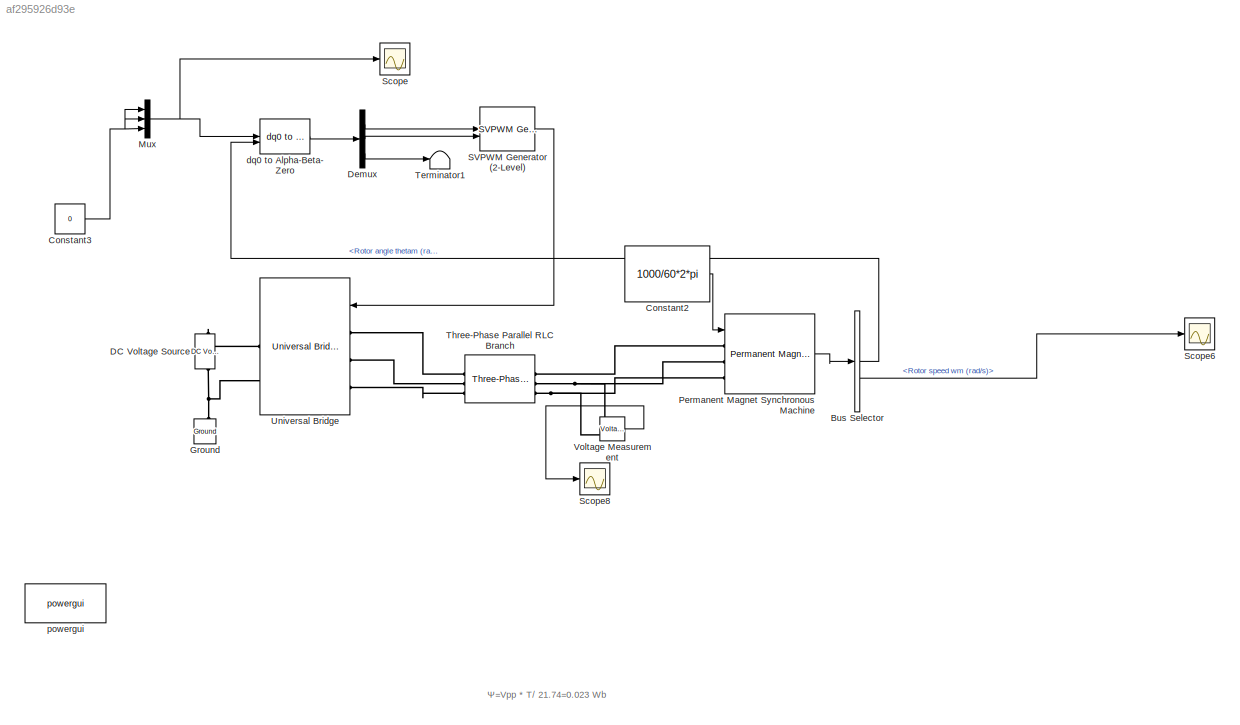
MODEL slx_af295926d93e
KIND model
CONFIG AbsTol = auto
CONFIG EnableMultiTasking = off
CONFIG FixedStep = 0.0000001
CONFIG MaxStep = auto
CONFIG MinStep = auto
CONFIG RelTol = 1e-3
CONFIG SampleTimeConstraint = Unconstrained
CONFIG SolverName = VariableStepAuto
CONFIG StartTime = 0.0
CONFIG StopTime = 0.05
BLOCK [BusSelector] Bus Selector
  OutputSignals = Rotor angle thetam (rad),Rotor speed wm (rad/s),Stator current is_a (A),Stator current is_b (A),Stator current is_c (A),Electromagnetic torque Te (N*m)
BLOCK [Constant] Constant2
  Value = 1000/60*2*pi
BLOCK [Constant] Constant3
  Value = 0
BLOCK [Reference] DC Voltage Source  REF=spsDCVoltageSourceLib/DC Voltage Source
  LibrarySourceBlock = sps_lib/Sources/DC Voltage Source
  SourceBlock = spsDCVoltageSourceLib/DC Voltage Source
  SourceType = DC Voltage Source
BLOCK [Demux] Demux
  Outputs = 3
BLOCK [Reference] Ground  REF=spsGroundLib/Ground
  LibrarySourceBlock = sps_lib/Utilities/Ground
  NameLocation = right
  SourceBlock = spsGroundLib/Ground
  SourceType = Ground
BLOCK [Mux] Mux
  DisplayOption = bar
  Inputs = 3
BLOCK [Reference] Permanent Magnet Synchronous Machine  REF=spsPermanentMagnetSynchronousMachineLib/Permanent Magnet
Synchronous Machine
  LibrarySourceBlock = sps_lib/Electrical Machines/Permanent Magnet\nSynchronous Machine
  SourceBlock = spsPermanentMagnetSynchronousMachineLib/Permanent Magnet\nSynchronous Machine
  SourceType = Permanent Magnet Synchronous Machine
BLOCK [Reference] SVPWM Generator (2-Level)  REF=spsSVPWMGenerator2LevelLib/SVPWM Generator
(2-Level)
  LibrarySourceBlock = sps_lib/Power Electronics/Power Electronics Control/SVPWM Generator\n(2-Level)
  SourceBlock = spsSVPWMGenerator2LevelLib/SVPWM Generator\n(2-Level)
  SourceType = SVPWM Generator (2-Level)
BLOCK [Scope] Scope
  Floating = off
  NumInputPorts = 1
  ScopeSpecificationString = Simulink.scopes.TimeScopeBlockCfg('CurrentConfiguration', extmgr.ConfigurationSet(extmgr.Configuration('Core','General UI',true),extmgr.Configuration('Core','Source UI',true),extmgr.Configuration('Sources','WiredSimulink',true),extmgr.Configuration('Visuals','Time Domain',true,'SerializedDisplays',{struct('MinYLimReal','-0.0625','MaxYLimReal','0.5625','YLabelReal','','MinYLimMag','0.00000','MaxYLi...<+1580ch>
BLOCK [Scope] Scope6
  Floating = off
  NumInputPorts = 1
  ScopeSpecificationString = Simulink.scopes.TimeScopeBlockCfg('CurrentConfiguration', extmgr.ConfigurationSet(extmgr.Configuration('Core','General UI',true),extmgr.Configuration('Core','Source UI',true),extmgr.Configuration('Sources','WiredSimulink',true,'DataLoggingVariableName','ScopeData7'),extmgr.Configuration('Visuals','Time Domain',true,'SerializedDisplays',{struct('MinYLimReal','4.71976','MaxYLimReal','204.71976','YLa...<+1508ch>
BLOCK [Scope] Scope8
  Floating = off
  NumInputPorts = 1
  ScopeSpecificationString = Simulink.scopes.TimeScopeBlockCfg('CurrentConfiguration', extmgr.ConfigurationSet(extmgr.Configuration('Core','General UI',true),extmgr.Configuration('Core','Source UI',true),extmgr.Configuration('Sources','WiredSimulink',true,'DataLoggingVariableName','ScopeData2'),extmgr.Configuration('Visuals','Time Domain',true,'SerializedDisplays',{struct('MinYLimReal','-15.11504','MaxYLimReal','15.11554','YL...<+1518ch>
BLOCK [Terminator] Terminator1
BLOCK [Reference] Three-Phase Parallel RLC Branch  REF=spsThreePhaseParallelRLCBranchLib/Three-Phase
Parallel RLC Branch
  AttributesFormatString = \n
  LibrarySourceBlock = sps_lib/Passives/Three-Phase\nParallel RLC Branch
  SourceBlock = spsThreePhaseParallelRLCBranchLib/Three-Phase\nParallel RLC Branch
  SourceType = Three-Phase Parallel RLC Branch
BLOCK [Reference] Universal Bridge  REF=spsUniversalBridgeLib/Universal Bridge
  LibrarySourceBlock = sps_lib/Power Electronics/Universal Bridge
  NameLocation = top
  SourceBlock = spsUniversalBridgeLib/Universal Bridge
  SourceType = Universal Bridge
BLOCK [Reference] Voltage Measurement  REF=spsVoltageMeasurementLib/Voltage Measurement
  LibrarySourceBlock = sps_lib/Sensors and Measurements/Voltage Measurement
  SourceBlock = spsVoltageMeasurementLib/Voltage Measurement
  SourceType = Voltage Measurement
  UserDataPersistent = on
BLOCK [Reference] dq0 to Alpha-Beta-Zero  REF=spsdq0toAlphaBetaZeroLib/dq0 to
Alpha-Beta-Zero
  LibrarySourceBlock = sps_lib/Control/dq0 to\nAlpha-Beta-Zero
  SourceBlock = spsdq0toAlphaBetaZeroLib/dq0 to\nAlpha-Beta-Zero
  SourceType = dq0 to Alpha-Beta-Zero Transformation
BLOCK [Reference] powergui  REF=spspowerguiLib/powergui
  Priority = 1
  SourceBlock = spspowerguiLib/powergui
  SourceType = PSB option menu block
ANNOTATION (root): Ψ=Vpp * T/ 21.74=0.023 Wb
LINE Bus Selector:1 -> dq0 to Alpha-Beta-Zero:2
LINE Bus Selector:2 -> Scope6:1
LINE Constant2:1 -> Permanent Magnet Synchronous Machine:1
NET Constant3:1 -> Mux:1, Mux:2, Mux:3
LINE Demux:1 -> SVPWM Generator (2-Level):1
LINE Demux:2 -> SVPWM Generator (2-Level):2
LINE Demux:3 -> Terminator1:1
NET Mux:1 -> Scope:1, dq0 to Alpha-Beta-Zero:1
LINE Permanent Magnet Synchronous Machine:1 -> Bus Selector:1
LINE SVPWM Generator (2-Level):1 -> Universal Bridge:1
LINE Voltage Measurement:1 -> Scope8:1
LINE dq0 to Alpha-Beta-Zero:1 -> Demux:1
PNET net1: DC Voltage Source:LConn1 -- Ground:LConn1 -- Universal Bridge:RConn2
PLINE DC Voltage Source:RConn1 -- Universal Bridge:RConn1
PLINE Permanent Magnet Synchronous Machine:LConn1 -- Three-Phase Parallel RLC Branch:RConn1
PNET net2: Permanent Magnet Synchronous Machine:LConn2 -- Three-Phase Parallel RLC Branch:RConn2 -- Voltage Measurement:LConn1
PNET net3: Permanent Magnet Synchronous Machine:LConn3 -- Three-Phase Parallel RLC Branch:RConn3 -- Voltage Measurement:LConn2
PLINE Three-Phase Parallel RLC Branch:LConn1 -- Universal Bridge:LConn1
PLINE Three-Phase Parallel RLC Branch:LConn2 -- Universal Bridge:LConn2
PLINE Three-Phase Parallel RLC Branch:LConn3 -- Universal Bridge:LConn3
note: NET lines group one-source signal fan-out (src -> all destinations, sorted); 1:1 wires keep LINE; PNET lines group multi-terminal physical nets as a canonical sorted terminal list (undirected conserving connections); 2-terminal nets keep the pairwise PLINE form
